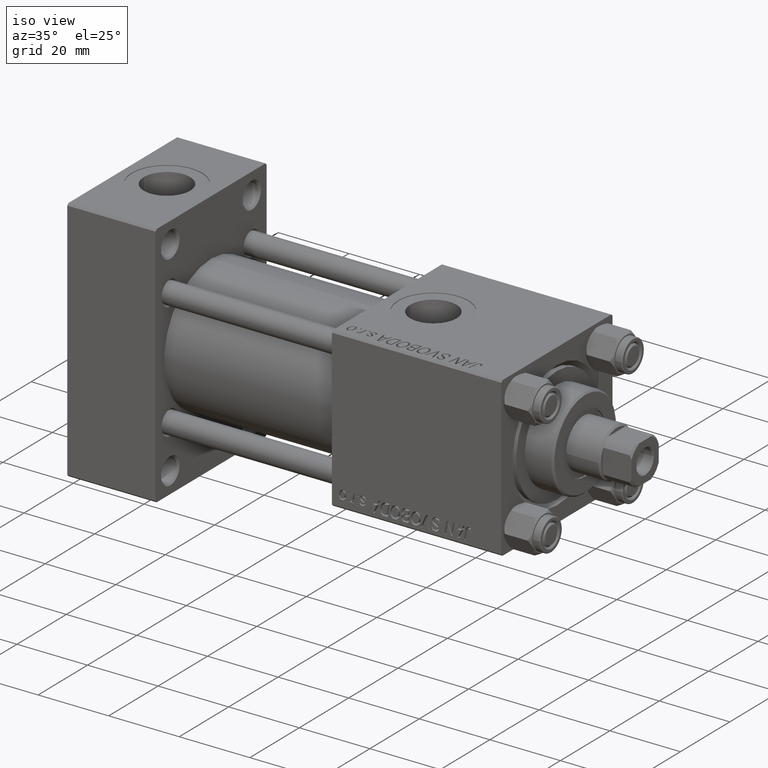
[diagram: clean part render]
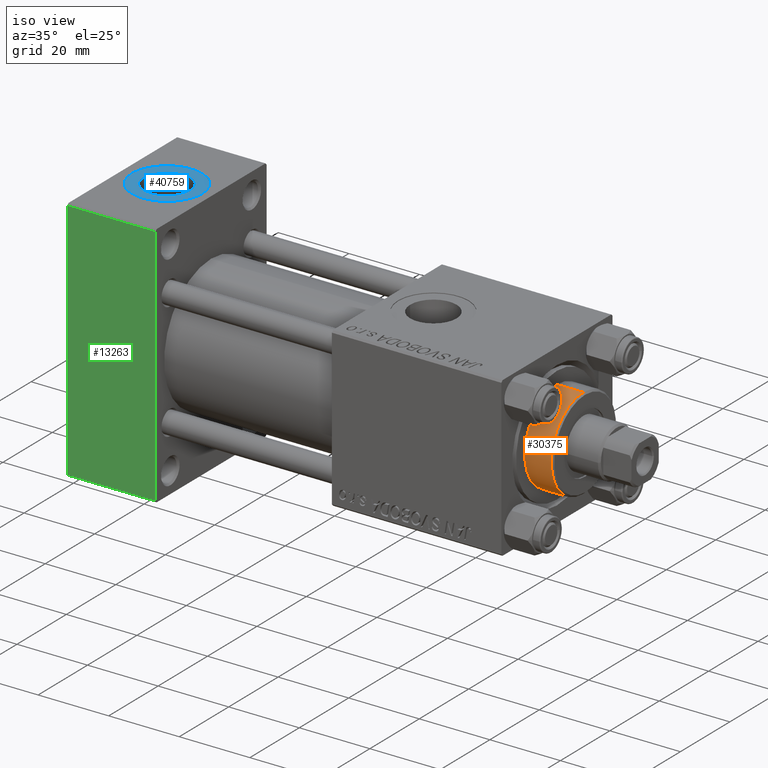
[diagram: same view with three faces highlighted in distinct colors, each labeled with its STEP entity id]
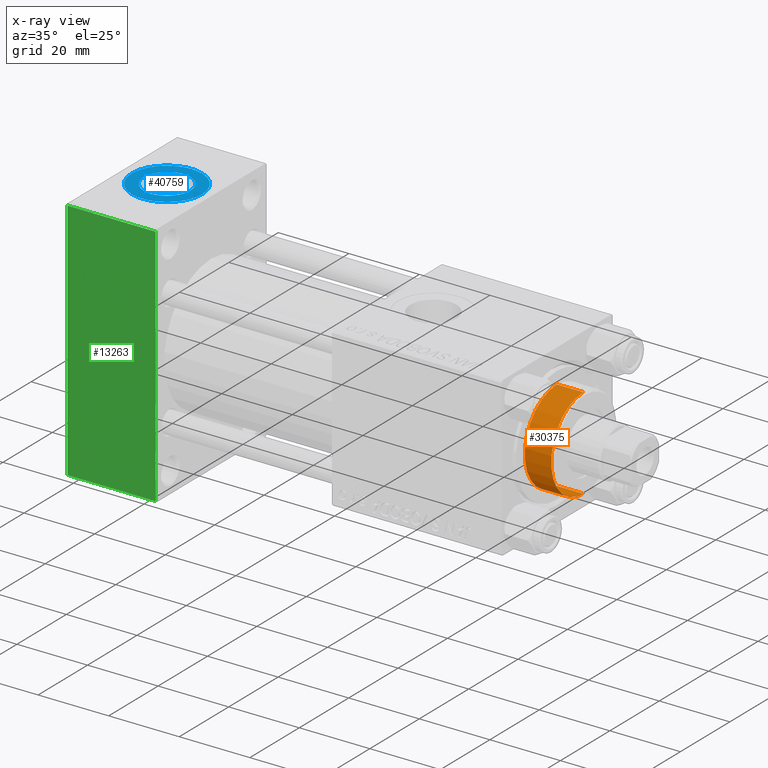
[diagram: x-ray of the same camera — body ghosted, the three highlighted faces saturated]
A machine part, iso view with three faces highlighted in distinct colors.
The next image is the same camera in x-ray (body ghosted, the three faces saturated) — at least one of them is partly hidden behind the body in this view.
Their STEP definitions:

[orange] entity #30375 — the highlighted cylindrical surface (partial cylindrical patch) has radius 13 mm, axis along (-1, -0, 0).
#1171 = DIRECTION ( 'NONE',  ( 0.000000000000000000, 0.000000000000000000, -1.000000000000000000 ) ) ;
#1226 = EDGE_CURVE ( 'NONE', #9299, #30500, #9815, .T. ) ;
#1479 = AXIS2_PLACEMENT_3D ( 'NONE', #48541, #40710, #29080 ) ;
#1589 = EDGE_CURVE ( 'NONE', #9299, #34328, #43558, .T. ) ;
#4417 = VECTOR ( 'NONE', #19659, 1000.000000000000000 ) ;
#6097 = DIRECTION ( 'NONE',  ( -0.000000000000000000, -0.000000000000000000, -1.000000000000000000 ) ) ;
#7431 = AXIS2_PLACEMENT_3D ( 'NONE', #13523, #1171, #27942 ) ;
#9299 = VERTEX_POINT ( 'NONE', #49695 ) ;
#9815 = CIRCLE ( 'NONE', #7431, 13.00000000000000178 ) ;
#10004 = CARTESIAN_POINT ( 'NONE',  ( 13.00000000000000178, 1.592040838891559293E-15, 28.69999999999999929 ) ) ;
#11015 = FACE_OUTER_BOUND ( 'NONE', #30492, .T. ) ;
#11262 = CYLINDRICAL_SURFACE ( 'NONE', #33991, 13.00000000000000178 ) ;
#13523 = CARTESIAN_POINT ( 'NONE',  ( 0.000000000000000000, 0.000000000000000000, 36.20000000000000995 ) ) ;
#18316 = CARTESIAN_POINT ( 'NONE',  ( 0.000000000000000000, 0.000000000000000000, 36.69999999999999574 ) ) ;
#19659 = DIRECTION ( 'NONE',  ( -0.000000000000000000, -0.000000000000000000, -1.000000000000000000 ) ) ;
#21613 = CIRCLE ( 'NONE', #1479, 13.00000000000000178 ) ;
#21751 = VERTEX_POINT ( 'NONE', #47175 ) ;
#21961 = EDGE_CURVE ( 'NONE', #21751, #34328, #21613, .T. ) ;
#22701 = LINE ( 'NONE', #42163, #4417 ) ;
#26655 = DIRECTION ( 'NONE',  ( -0.000000000000000000, -0.000000000000000000, -1.000000000000000000 ) ) ;
#27942 = DIRECTION ( 'NONE',  ( 1.000000000000000000, 0.000000000000000000, 0.000000000000000000 ) ) ;
#29080 = DIRECTION ( 'NONE',  ( 1.000000000000000000, 0.000000000000000000, 0.000000000000000000 ) ) ;
#29682 = DIRECTION ( 'NONE',  ( -1.000000000000000000, 0.000000000000000000, 0.000000000000000000 ) ) ;
#30196 = ORIENTED_EDGE ( 'NONE', *, *, #1589, .F. ) ;
#30375 = ADVANCED_FACE ( 'NONE', ( #11015 ), #11262, .T. ) ;
#30492 = EDGE_LOOP ( 'NONE', ( #30196, #44222, #40425, #32257 ) ) ;
#30500 = VERTEX_POINT ( 'NONE', #49918 ) ;
#32257 = ORIENTED_EDGE ( 'NONE', *, *, #21961, .T. ) ;
#33991 = AXIS2_PLACEMENT_3D ( 'NONE', #18316, #26655, #29682 ) ;
#34328 = VERTEX_POINT ( 'NONE', #10004 ) ;
#37256 = VECTOR ( 'NONE', #6097, 1000.000000000000000 ) ;
#38541 = EDGE_CURVE ( 'NONE', #30500, #21751, #22701, .T. ) ;
#39763 = CARTESIAN_POINT ( 'NONE',  ( 13.00000000000000178, 1.592040838891559293E-15, 36.69999999999999574 ) ) ;
#40425 = ORIENTED_EDGE ( 'NONE', *, *, #38541, .T. ) ;
#40710 = DIRECTION ( 'NONE',  ( 0.000000000000000000, 0.000000000000000000, 1.000000000000000000 ) ) ;
#42163 = CARTESIAN_POINT ( 'NONE',  ( -13.00000000000000178, 0.000000000000000000, 36.69999999999999574 ) ) ;
#43558 = LINE ( 'NONE', #39763, #37256 ) ;
#44222 = ORIENTED_EDGE ( 'NONE', *, *, #1226, .T. ) ;
#47175 = CARTESIAN_POINT ( 'NONE',  ( -13.00000000000000178, 0.000000000000000000, 28.69999999999999929 ) ) ;
#48541 = CARTESIAN_POINT ( 'NONE',  ( 0.000000000000000000, 0.000000000000000000, 28.69999999999999929 ) ) ;
#49695 = CARTESIAN_POINT ( 'NONE',  ( 13.00000000000000178, 1.592040838891559293E-15, 36.20000000000000995 ) ) ;
#49918 = CARTESIAN_POINT ( 'NONE',  ( -13.00000000000000178, 0.000000000000000000, 36.20000000000000995 ) ) ;

[blue] entity #40759 — the highlighted planar face has unit normal (0, 0, 1).
#1971 = CIRCLE ( 'NONE', #30215, 9.999999999999998224 ) ;
#2157 = CIRCLE ( 'NONE', #39288, 6.579999999999999183 ) ;
#2911 = DIRECTION ( 'NONE',  ( 0.000000000000000000, 0.000000000000000000, 1.000000000000000000 ) ) ;
#4634 = CARTESIAN_POINT ( 'NONE',  ( 22.50000000000000000, -5.396917480816734322E-15, 34.80000000000000426 ) ) ;
#4977 = EDGE_CURVE ( 'NONE', #19039, #12832, #13946, .T. ) ;
#8847 = EDGE_CURVE ( 'NONE', #12832, #19039, #1971, .T. ) ;
#8899 = ORIENTED_EDGE ( 'NONE', *, *, #4977, .T. ) ;
#9239 = AXIS2_PLACEMENT_3D ( 'NONE', #27628, #23600, #34715 ) ;
#9431 = CARTESIAN_POINT ( 'NONE',  ( 12.50000000000000000, -5.396917480816734322E-15, 34.80000000000000426 ) ) ;
#9800 = CARTESIAN_POINT ( 'NONE',  ( 19.07999999999999829, -5.396917480816734322E-15, 34.80000000000000426 ) ) ;
#10198 = VERTEX_POINT ( 'NONE', #9800 ) ;
#12832 = VERTEX_POINT ( 'NONE', #49813 ) ;
#13201 = CARTESIAN_POINT ( 'NONE',  ( 5.920000000000002593, -4.591099886977776069E-15, 34.80000000000000426 ) ) ;
#13325 = AXIS2_PLACEMENT_3D ( 'NONE', #34084, #49512, #14890 ) ;
#13946 = CIRCLE ( 'NONE', #45408, 9.999999999999998224 ) ;
#14476 = EDGE_CURVE ( 'NONE', #10198, #42114, #2157, .T. ) ;
#14890 = DIRECTION ( 'NONE',  ( 1.000000000000000000, 0.000000000000000000, 0.000000000000000000 ) ) ;
#17509 = DIRECTION ( 'NONE',  ( 0.000000000000000000, 0.000000000000000000, 1.000000000000000000 ) ) ;
#19039 = VERTEX_POINT ( 'NONE', #4634 ) ;
#22354 = CARTESIAN_POINT ( 'NONE',  ( 12.50000000000000000, -5.396917480816734322E-15, 34.80000000000000426 ) ) ;
#23600 = DIRECTION ( 'NONE',  ( 0.000000000000000000, 0.000000000000000000, 1.000000000000000000 ) ) ;
#26571 = EDGE_LOOP ( 'NONE', ( #8899, #34736 ) ) ;
#26643 = FACE_BOUND ( 'NONE', #46817, .T. ) ;
#26890 = PLANE ( 'NONE',  #9239 ) ;
#27628 = CARTESIAN_POINT ( 'NONE',  ( 12.50000000000000000, -5.396917480816734322E-15, 34.80000000000000426 ) ) ;
#28804 = ORIENTED_EDGE ( 'NONE', *, *, #40528, .F. ) ;
#29844 = DIRECTION ( 'NONE',  ( 1.000000000000000000, 0.000000000000000000, 0.000000000000000000 ) ) ;
#30215 = AXIS2_PLACEMENT_3D ( 'NONE', #9431, #45018, #29844 ) ;
#30685 = FACE_OUTER_BOUND ( 'NONE', #26571, .T. ) ;
#31011 = ORIENTED_EDGE ( 'NONE', *, *, #14476, .F. ) ;
#32180 = CARTESIAN_POINT ( 'NONE',  ( 12.50000000000000000, -5.396917480816734322E-15, 34.80000000000000426 ) ) ;
#34084 = CARTESIAN_POINT ( 'NONE',  ( 12.50000000000000000, -5.396917480816734322E-15, 34.80000000000000426 ) ) ;
#34715 = DIRECTION ( 'NONE',  ( 1.000000000000000000, 0.000000000000000000, -0.000000000000000000 ) ) ;
#34736 = ORIENTED_EDGE ( 'NONE', *, *, #8847, .T. ) ;
#39288 = AXIS2_PLACEMENT_3D ( 'NONE', #32180, #17509, #40020 ) ;
#40020 = DIRECTION ( 'NONE',  ( 1.000000000000000000, 0.000000000000000000, 0.000000000000000000 ) ) ;
#40528 = EDGE_CURVE ( 'NONE', #42114, #10198, #42307, .T. ) ;
#40759 = ADVANCED_FACE ( 'NONE', ( #26643, #30685 ), #26890, .T. ) ;
#42114 = VERTEX_POINT ( 'NONE', #13201 ) ;
#42307 = CIRCLE ( 'NONE', #13325, 6.579999999999999183 ) ;
#42321 = DIRECTION ( 'NONE',  ( 1.000000000000000000, 0.000000000000000000, 0.000000000000000000 ) ) ;
#45018 = DIRECTION ( 'NONE',  ( 0.000000000000000000, 0.000000000000000000, 1.000000000000000000 ) ) ;
#45408 = AXIS2_PLACEMENT_3D ( 'NONE', #22354, #2911, #42321 ) ;
#46817 = EDGE_LOOP ( 'NONE', ( #31011, #28804 ) ) ;
#49512 = DIRECTION ( 'NONE',  ( 0.000000000000000000, 0.000000000000000000, 1.000000000000000000 ) ) ;
#49813 = CARTESIAN_POINT ( 'NONE',  ( 2.500000000000003997, -4.172270681669381263E-15, 34.80000000000000426 ) ) ;

[green] entity #13263 — the highlighted planar face has unit normal (0, 1, 0).
#615 = CARTESIAN_POINT ( 'NONE',  ( 0.000000000000000000, -22.49999999999999645, -34.50000000000000000 ) ) ;
#3882 = VECTOR ( 'NONE', #4283, 1000.000000000000000 ) ;
#4266 = EDGE_CURVE ( 'NONE', #47507, #44860, #29790, .T. ) ;
#4283 = DIRECTION ( 'NONE',  ( 0.000000000000000000, 0.000000000000000000, -1.000000000000000000 ) ) ;
#4961 = EDGE_LOOP ( 'NONE', ( #17798, #36867, #7229, #18660 ) ) ;
#6493 = DIRECTION ( 'NONE',  ( -0.000000000000000000, 1.000000000000000000, 0.000000000000000000 ) ) ;
#7229 = ORIENTED_EDGE ( 'NONE', *, *, #20945, .F. ) ;
#8529 = VECTOR ( 'NONE', #19316, 1000.000000000000000 ) ;
#9837 = CARTESIAN_POINT ( 'NONE',  ( 25.00000000000000000, -22.49999999999999645, -34.50000000000000000 ) ) ;
#13263 = ADVANCED_FACE ( 'NONE', ( #41335 ), #37293, .F. ) ;
#15383 = LINE ( 'NONE', #19667, #3882 ) ;
#16798 = DIRECTION ( 'NONE',  ( 1.000000000000000000, 0.000000000000000000, 0.000000000000000000 ) ) ;
#17088 = CARTESIAN_POINT ( 'NONE',  ( 25.00000000000000000, -22.49999999999999645, 35.00000000000000000 ) ) ;
#17507 = CARTESIAN_POINT ( 'NONE',  ( 25.00000000000000000, -22.49999999999999645, 34.50000000000000000 ) ) ;
#17783 = LINE ( 'NONE', #21327, #17790 ) ;
#17790 = VECTOR ( 'NONE', #16798, 1000.000000000000000 ) ;
#17798 = ORIENTED_EDGE ( 'NONE', *, *, #40740, .T. ) ;
#18660 = ORIENTED_EDGE ( 'NONE', *, *, #4266, .T. ) ;
#19316 = DIRECTION ( 'NONE',  ( 0.000000000000000000, 0.000000000000000000, -1.000000000000000000 ) ) ;
#19557 = CARTESIAN_POINT ( 'NONE',  ( 0.000000000000000000, -22.49999999999999645, 35.00000000000000000 ) ) ;
#19667 = CARTESIAN_POINT ( 'NONE',  ( 25.00000000000000000, -22.49999999999999645, 35.00000000000000000 ) ) ;
#20945 = EDGE_CURVE ( 'NONE', #47507, #27434, #15383, .T. ) ;
#21327 = CARTESIAN_POINT ( 'NONE',  ( 25.00000000000000000, -22.49999999999999645, -34.50000000000000000 ) ) ;
#24462 = VERTEX_POINT ( 'NONE', #615 ) ;
#27434 = VERTEX_POINT ( 'NONE', #9837 ) ;
#28871 = EDGE_CURVE ( 'NONE', #24462, #27434, #17783, .T. ) ;
#29197 = DIRECTION ( 'NONE',  ( 0.000000000000000000, -0.000000000000000000, 1.000000000000000000 ) ) ;
#29790 = LINE ( 'NONE', #37645, #40559 ) ;
#36867 = ORIENTED_EDGE ( 'NONE', *, *, #28871, .T. ) ;
#37293 = PLANE ( 'NONE',  #41661 ) ;
#37645 = CARTESIAN_POINT ( 'NONE',  ( 25.00000000000000000, -22.49999999999999645, 34.50000000000000000 ) ) ;
#40245 = DIRECTION ( 'NONE',  ( -1.000000000000000000, 0.000000000000000000, 0.000000000000000000 ) ) ;
#40559 = VECTOR ( 'NONE', #40245, 1000.000000000000000 ) ;
#40740 = EDGE_CURVE ( 'NONE', #44860, #24462, #49903, .T. ) ;
#41335 = FACE_OUTER_BOUND ( 'NONE', #4961, .T. ) ;
#41661 = AXIS2_PLACEMENT_3D ( 'NONE', #17088, #6493, #29197 ) ;
#44860 = VERTEX_POINT ( 'NONE', #46298 ) ;
#46298 = CARTESIAN_POINT ( 'NONE',  ( 0.000000000000000000, -22.49999999999999645, 34.50000000000000000 ) ) ;
#47507 = VERTEX_POINT ( 'NONE', #17507 ) ;
#49903 = LINE ( 'NONE', #19557, #8529 ) ;